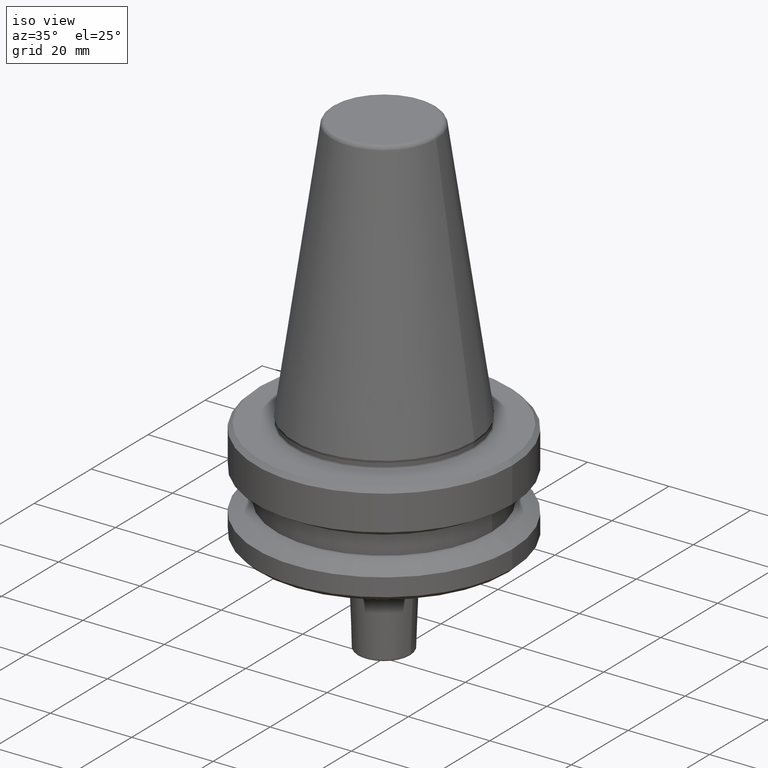
[diagram: clean part render]
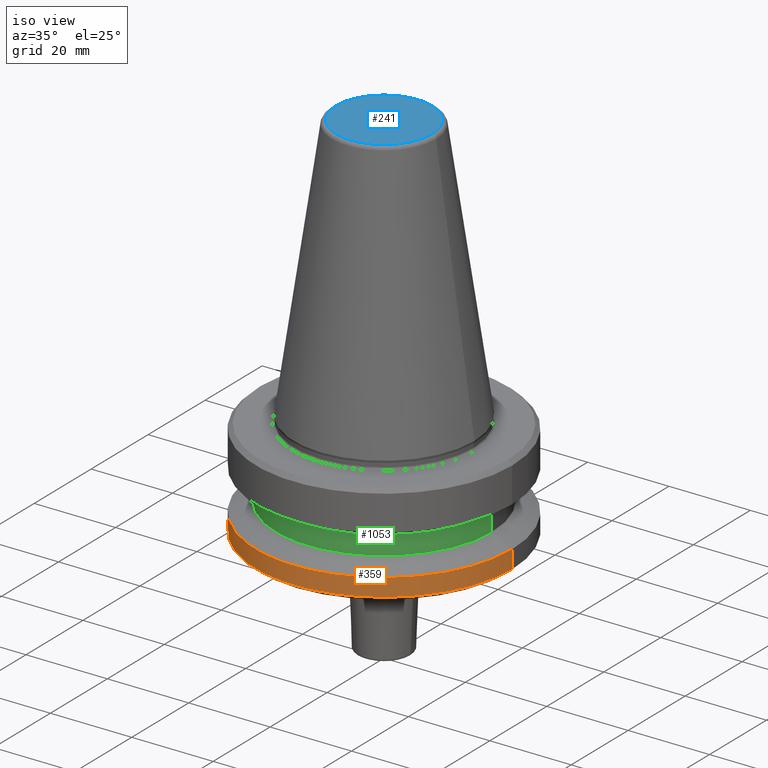
[diagram: same view with three faces highlighted in distinct colors, each labeled with its STEP entity id]
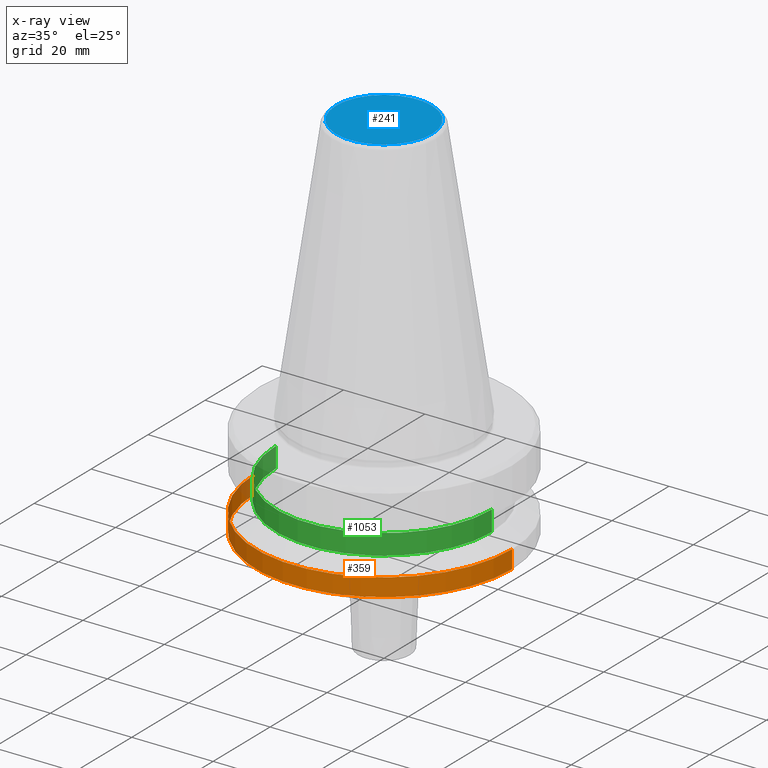
[diagram: x-ray of the same camera — body ghosted, the three highlighted faces saturated]
A machine part, iso view with three faces highlighted in distinct colors.
The next image is the same camera in x-ray (body ghosted, the three faces saturated) — at least one of them is partly hidden behind the body in this view.
Their STEP definitions:

[orange] entity #359 — the highlighted cylindrical surface (partial cylindrical patch) has radius 31.5 mm, axis along (-0, -0, 1).
#2 = CIRCLE ( 'NONE', #910, 31.50000000000008500 ) ;
#17 = DIRECTION ( 'NONE',  ( -0.0000000000000000000, -0.0000000000000000000, 1.000000000000000000 ) ) ;
#76 = CARTESIAN_POINT ( 'NONE',  ( 0.0000000000000000000, 0.0000000000000000000, -91.40000000000037500 ) ) ;
#108 = AXIS2_PLACEMENT_3D ( 'NONE', #848, #229, #300 ) ;
#120 = EDGE_CURVE ( 'NONE', #865, #883, #316, .T. ) ;
#174 = CARTESIAN_POINT ( 'NONE',  ( 31.50000000000008500, 0.0000000000000000000, -91.40000000000037500 ) ) ;
#175 = VECTOR ( 'NONE', #192, 1000.000000000000000 ) ;
#182 = FACE_OUTER_BOUND ( 'NONE', #1048, .T. ) ;
#183 = DIRECTION ( 'NONE',  ( 1.000000000000000000, 0.0000000000000000000, 0.0000000000000000000 ) ) ;
#188 = CARTESIAN_POINT ( 'NONE',  ( -31.50000000000008500, 3.857637417314172900E-015, -87.00014200631733300 ) ) ;
#192 = DIRECTION ( 'NONE',  ( -0.0000000000000000000, -0.0000000000000000000, 1.000000000000000000 ) ) ;
#229 = DIRECTION ( 'NONE',  ( -0.0000000000000000000, -0.0000000000000000000, 1.000000000000000000 ) ) ;
#286 = ORIENTED_EDGE ( 'NONE', *, *, #1018, .T. ) ;
#300 = DIRECTION ( 'NONE',  ( 1.000000000000000000, 0.0000000000000000000, 0.0000000000000000000 ) ) ;
#301 = DIRECTION ( 'NONE',  ( -0.0000000000000000000, -0.0000000000000000000, 1.000000000000000000 ) ) ;
#316 = LINE ( 'NONE', #771, #900 ) ;
#359 = ADVANCED_FACE ( 'NONE', ( #182 ), #1015, .T. ) ;
#384 = LINE ( 'NONE', #656, #175 ) ;
#387 = ORIENTED_EDGE ( 'NONE', *, *, #120, .F. ) ;
#424 = ORIENTED_EDGE ( 'NONE', *, *, #1052, .T. ) ;
#468 = CARTESIAN_POINT ( 'NONE',  ( -31.50000000000008500, 3.857637417314172900E-015, -91.40000000000037500 ) ) ;
#491 = CARTESIAN_POINT ( 'NONE',  ( 0.0000000000000000000, 0.0000000000000000000, -87.00014200631733300 ) ) ;
#577 = DIRECTION ( 'NONE',  ( 1.000000000000000000, 0.0000000000000000000, 0.0000000000000000000 ) ) ;
#612 = CIRCLE ( 'NONE', #1042, 31.50000000000008500 ) ;
#643 = DIRECTION ( 'NONE',  ( -0.0000000000000000000, -0.0000000000000000000, 1.000000000000000000 ) ) ;
#656 = CARTESIAN_POINT ( 'NONE',  ( 31.50000000000008500, 0.0000000000000000000, 6.357346922996331500 ) ) ;
#751 = VERTEX_POINT ( 'NONE', #983 ) ;
#771 = CARTESIAN_POINT ( 'NONE',  ( -31.50000000000008500, 3.857637417314172900E-015, 6.357346922996331500 ) ) ;
#826 = ORIENTED_EDGE ( 'NONE', *, *, #1027, .F. ) ;
#848 = CARTESIAN_POINT ( 'NONE',  ( 0.0000000000000000000, 0.0000000000000000000, 6.357346922996331500 ) ) ;
#865 = VERTEX_POINT ( 'NONE', #468 ) ;
#883 = VERTEX_POINT ( 'NONE', #188 ) ;
#900 = VECTOR ( 'NONE', #301, 1000.000000000000000 ) ;
#910 = AXIS2_PLACEMENT_3D ( 'NONE', #491, #17, #577 ) ;
#983 = CARTESIAN_POINT ( 'NONE',  ( 31.50000000000008500, 0.0000000000000000000, -87.00014200631733300 ) ) ;
#1002 = VERTEX_POINT ( 'NONE', #174 ) ;
#1015 = CYLINDRICAL_SURFACE ( 'NONE', #108, 31.50000000000008500 ) ;
#1018 = EDGE_CURVE ( 'NONE', #865, #1002, #612, .T. ) ;
#1027 = EDGE_CURVE ( 'NONE', #883, #751, #2, .T. ) ;
#1042 = AXIS2_PLACEMENT_3D ( 'NONE', #76, #643, #183 ) ;
#1048 = EDGE_LOOP ( 'NONE', ( #387, #286, #424, #826 ) ) ;
#1052 = EDGE_CURVE ( 'NONE', #1002, #751, #384, .T. ) ;

[blue] entity #241 — the highlighted planar face has unit normal (0, 0, -1).
#11 = CARTESIAN_POINT ( 'NONE',  ( 0.0000000000000000000, 0.0000000000000000000, -4.440892098500626200E-013 ) ) ;
#39 = AXIS2_PLACEMENT_3D ( 'NONE', #11, #570, #89 ) ;
#77 = ORIENTED_EDGE ( 'NONE', *, *, #974, .T. ) ;
#89 = DIRECTION ( 'NONE',  ( 1.000000000000000000, 0.0000000000000000000, 0.0000000000000000000 ) ) ;
#97 = CARTESIAN_POINT ( 'NONE',  ( 11.82266927716813000, 0.0000000000000000000, -4.440892098500626200E-013 ) ) ;
#191 = CARTESIAN_POINT ( 'NONE',  ( 0.0000000000000000000, 0.0000000000000000000, -4.440892098500626200E-013 ) ) ;
#241 = ADVANCED_FACE ( 'NONE', ( #1049 ), #455, .F. ) ;
#264 = AXIS2_PLACEMENT_3D ( 'NONE', #888, #408, #973 ) ;
#272 = DIRECTION ( 'NONE',  ( -1.000000000000000000, 0.0000000000000000000, -0.0000000000000000000 ) ) ;
#408 = DIRECTION ( 'NONE',  ( -0.0000000000000000000, -0.0000000000000000000, 1.000000000000000000 ) ) ;
#437 = AXIS2_PLACEMENT_3D ( 'NONE', #191, #733, #272 ) ;
#455 = PLANE ( 'NONE',  #437 ) ;
#496 = EDGE_CURVE ( 'NONE', #758, #767, #760, .T. ) ;
#537 = EDGE_LOOP ( 'NONE', ( #756, #77 ) ) ;
#570 = DIRECTION ( 'NONE',  ( -0.0000000000000000000, -0.0000000000000000000, 1.000000000000000000 ) ) ;
#733 = DIRECTION ( 'NONE',  ( 0.0000000000000000000, 0.0000000000000000000, -1.000000000000000000 ) ) ;
#756 = ORIENTED_EDGE ( 'NONE', *, *, #496, .T. ) ;
#758 = VERTEX_POINT ( 'NONE', #97 ) ;
#760 = CIRCLE ( 'NONE', #39, 11.82266927716813000 ) ;
#767 = VERTEX_POINT ( 'NONE', #809 ) ;
#809 = CARTESIAN_POINT ( 'NONE',  ( -11.82266927716813000, 1.508450817090336800E-015, -4.440892098500626200E-013 ) ) ;
#888 = CARTESIAN_POINT ( 'NONE',  ( 0.0000000000000000000, 0.0000000000000000000, -4.440892098500626200E-013 ) ) ;
#911 = CIRCLE ( 'NONE', #264, 11.82266927716813000 ) ;
#973 = DIRECTION ( 'NONE',  ( 1.000000000000000000, 0.0000000000000000000, 0.0000000000000000000 ) ) ;
#974 = EDGE_CURVE ( 'NONE', #767, #758, #911, .T. ) ;
#1049 = FACE_OUTER_BOUND ( 'NONE', #537, .T. ) ;

[green] entity #1053 — the highlighted cylindrical surface (partial cylindrical patch) has radius 26.5 mm, axis along (-0, -0, 1).
#28 = CARTESIAN_POINT ( 'NONE',  ( -26.50000000000019200, 3.245314017740509400E-015, 6.357346922996331500 ) ) ;
#33 = DIRECTION ( 'NONE',  ( -0.0000000000000000000, -0.0000000000000000000, 1.000000000000000000 ) ) ;
#60 = VERTEX_POINT ( 'NONE', #187 ) ;
#74 = AXIS2_PLACEMENT_3D ( 'NONE', #172, #714, #256 ) ;
#172 = CARTESIAN_POINT ( 'NONE',  ( 0.0000000000000000000, 0.0000000000000000000, -84.50000000000068200 ) ) ;
#187 = CARTESIAN_POINT ( 'NONE',  ( 26.50000000000019200, 0.0000000000000000000, -79.50000000000012800 ) ) ;
#215 = VERTEX_POINT ( 'NONE', #227 ) ;
#224 = LINE ( 'NONE', #815, #473 ) ;
#227 = CARTESIAN_POINT ( 'NONE',  ( -26.50000000000019200, 3.245314017740509400E-015, -84.50000000000068200 ) ) ;
#244 = EDGE_CURVE ( 'NONE', #748, #60, #224, .T. ) ;
#256 = DIRECTION ( 'NONE',  ( 1.000000000000000000, 0.0000000000000000000, 0.0000000000000000000 ) ) ;
#265 = VECTOR ( 'NONE', #33, 1000.000000000000000 ) ;
#338 = ORIENTED_EDGE ( 'NONE', *, *, #918, .F. ) ;
#346 = DIRECTION ( 'NONE',  ( -0.0000000000000000000, -0.0000000000000000000, 1.000000000000000000 ) ) ;
#364 = CIRCLE ( 'NONE', #685, 26.50000000000019200 ) ;
#393 = DIRECTION ( 'NONE',  ( -0.0000000000000000000, -0.0000000000000000000, 1.000000000000000000 ) ) ;
#400 = EDGE_CURVE ( 'NONE', #215, #748, #552, .T. ) ;
#440 = ORIENTED_EDGE ( 'NONE', *, *, #244, .T. ) ;
#470 = CYLINDRICAL_SURFACE ( 'NONE', #803, 26.50000000000019200 ) ;
#473 = VECTOR ( 'NONE', #996, 1000.000000000000000 ) ;
#516 = ORIENTED_EDGE ( 'NONE', *, *, #837, .F. ) ;
#522 = EDGE_LOOP ( 'NONE', ( #338, #838, #440, #516 ) ) ;
#552 = CIRCLE ( 'NONE', #74, 26.50000000000019200 ) ;
#685 = AXIS2_PLACEMENT_3D ( 'NONE', #863, #393, #951 ) ;
#688 = VERTEX_POINT ( 'NONE', #836 ) ;
#714 = DIRECTION ( 'NONE',  ( -0.0000000000000000000, -0.0000000000000000000, 1.000000000000000000 ) ) ;
#734 = DIRECTION ( 'NONE',  ( 1.000000000000000000, 0.0000000000000000000, 0.0000000000000000000 ) ) ;
#748 = VERTEX_POINT ( 'NONE', #1020 ) ;
#775 = FACE_OUTER_BOUND ( 'NONE', #522, .T. ) ;
#803 = AXIS2_PLACEMENT_3D ( 'NONE', #989, #346, #734 ) ;
#815 = CARTESIAN_POINT ( 'NONE',  ( 26.50000000000019200, 0.0000000000000000000, 6.357346922996331500 ) ) ;
#836 = CARTESIAN_POINT ( 'NONE',  ( -26.50000000000019200, 3.245314017740509400E-015, -79.50000000000012800 ) ) ;
#837 = EDGE_CURVE ( 'NONE', #688, #60, #364, .T. ) ;
#838 = ORIENTED_EDGE ( 'NONE', *, *, #400, .T. ) ;
#863 = CARTESIAN_POINT ( 'NONE',  ( 0.0000000000000000000, 0.0000000000000000000, -79.50000000000012800 ) ) ;
#897 = LINE ( 'NONE', #28, #265 ) ;
#918 = EDGE_CURVE ( 'NONE', #215, #688, #897, .T. ) ;
#951 = DIRECTION ( 'NONE',  ( 1.000000000000000000, 0.0000000000000000000, 0.0000000000000000000 ) ) ;
#989 = CARTESIAN_POINT ( 'NONE',  ( 0.0000000000000000000, 0.0000000000000000000, 6.357346922996331500 ) ) ;
#996 = DIRECTION ( 'NONE',  ( -0.0000000000000000000, -0.0000000000000000000, 1.000000000000000000 ) ) ;
#1020 = CARTESIAN_POINT ( 'NONE',  ( 26.50000000000019200, 0.0000000000000000000, -84.50000000000068200 ) ) ;
#1053 = ADVANCED_FACE ( 'NONE', ( #775 ), #470, .T. ) ;